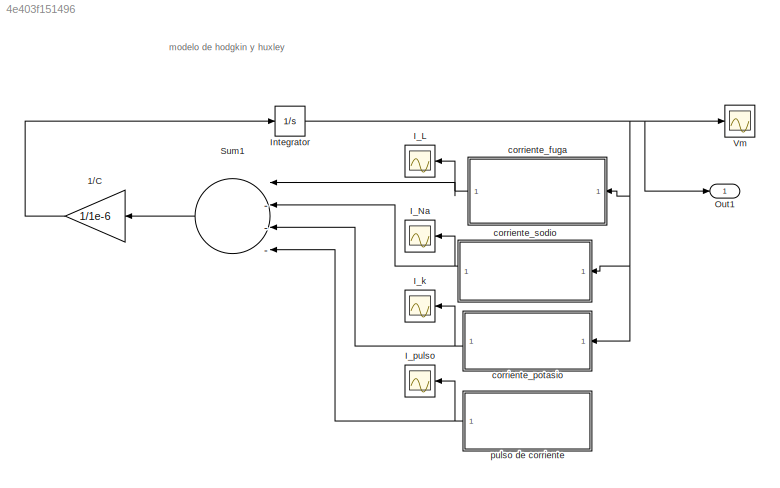
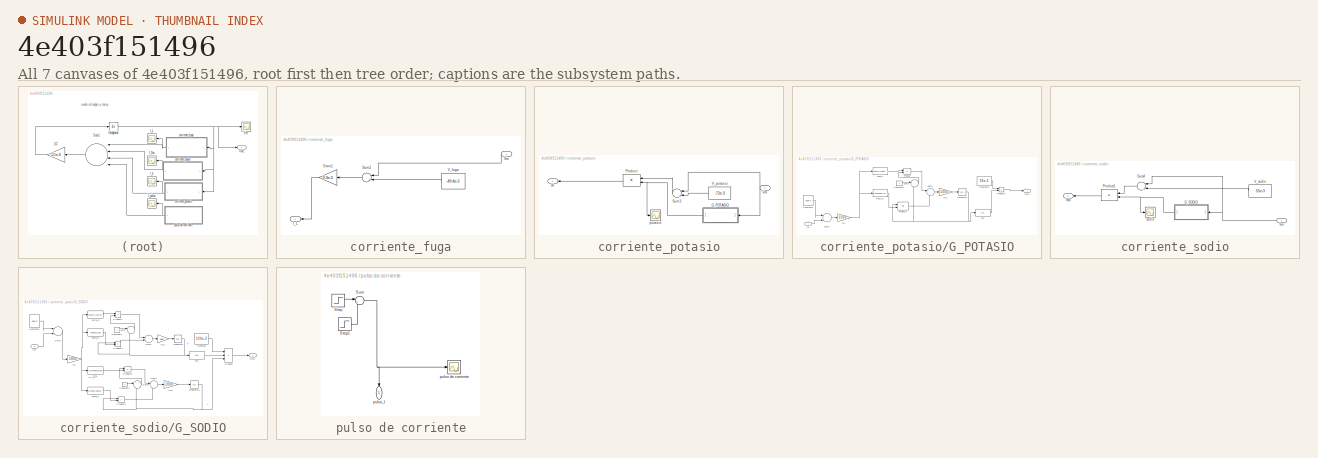
[diagram: thumbnail index - all 7 canvases of the model, root first then tree order]
MODEL slx_4e403f151496
KIND model
CONFIG AbsTol = auto
CONFIG EnableMultiTasking = on
CONFIG FixedStep = 30e-6
CONFIG MaxStep = auto
CONFIG MinStep = auto
CONFIG RelTol = 1e-3
CONFIG SampleTimeConstraint = Unconstrained
CONFIG Solver = FixedStepAuto
CONFIG SolverName = FixedStepAuto
CONFIG StartTime = 0.0
CONFIG StopTime = 30e-3
BLOCK [Gain] 1//C
  Gain = 1/1e-6
BLOCK [Scope] I_L
  Floating = off
  NumInputPorts = 1
  Ports = [1]
  ScopeSpecificationString = C++SS(StrPVP('Location','[564, 159, 896, 337]'),StrPVP('Open','off'),StrPVP('ZoomMode','xonly'),MxPVP('AxesTitles',53,'struct(''axes1'',''%<SignalLabel>'')'),StrPVP('ShowLegends','off'),StrPVP('TimeRange','0.08            '),StrPVP('YMin','-0.048825'),StrPVP('YMax','-0.048375'),StrPVP('SaveName','ScopeData6'),StrPVP('DataFormat','StructureWithTime'),StrPVP('BlockParamSampleTime','0'),StrPVP('Limit...<+81ch>
BLOCK [Scope] I_Na
  Floating = off
  NumInputPorts = 1
  Ports = [1]
  ScopeSpecificationString = C++SS(StrPVP('Location','[662, 296, 1007, 521]'),StrPVP('Open','off'),StrPVP('ZoomMode','xonly'),MxPVP('AxesTitles',53,'struct(''axes1'',''%<SignalLabel>'')'),StrPVP('ShowLegends','off'),StrPVP('TimeRange','0.08            '),StrPVP('YMin','-0.048825'),StrPVP('YMax','-0.048375'),StrPVP('SaveName','ScopeData4'),StrPVP('DataFormat','StructureWithTime'),StrPVP('BlockParamSampleTime','0'),StrPVP('Limi...<+82ch>
BLOCK [Scope] I_k
  Floating = off
  NumInputPorts = 1
  Ports = [1]
  ScopeSpecificationString = C++SS(StrPVP('Location','[596, 85, 966, 368]'),StrPVP('Open','off'),StrPVP('ZoomMode','xonly'),MxPVP('AxesTitles',53,'struct(''axes1'',''%<SignalLabel>'')'),StrPVP('ShowLegends','off'),StrPVP('TimeRange','0.08            '),StrPVP('YMin','-0.048825'),StrPVP('YMax','-0.048375'),StrPVP('SaveName','ScopeData3'),StrPVP('DataFormat','StructureWithTime'),StrPVP('BlockParamSampleTime','0'),StrPVP('LimitD...<+80ch>
BLOCK [Scope] I_pulso
  Floating = off
  NumInputPorts = 1
  Ports = [1]
  ScopeSpecificationString = C++SS(StrPVP('Location','[500, 305, 1104, 703]'),StrPVP('Open','off'),StrPVP('ZoomMode','xonly'),MxPVP('AxesTitles',53,'struct(''axes1'',''%<SignalLabel>'')'),MxPVP('ScopeGraphics',56,'struct(''FigureColor'',''[0.5 0.5 0.5]'',''AxesColor'',''[0 0 0]'',''AxesTickColor'',''[1 1 1]'',''LineColors'',''[1 1 0;1 0 1;0 1 1;1 0 0;0 1 0;0 0 1]'',''LineStyles'',''-|-|-|-|-|-'',''LineWidths'',''[0.5 0.5 0.5 ...<+392ch>
BLOCK [Integrator] Integrator
  InitialCondition = -60e-3
  Ports = [1, 1]
BLOCK [Outport] Out1
  IconDisplay = Port number
BLOCK [Sum] Sum1
  InputSameDT = off
  Inputs = |---+
  OutDataTypeStr = Inherit: Inherit via internal rule
  Ports = [4, 1]
BLOCK [Scope] Vm
  Floating = off
  NumInputPorts = 1
  Ports = [1]
  ScopeSpecificationString = Simulink.scopes.TimeScopeBlockCfg('CurrentConfiguration', extmgr.ConfigurationSet(extmgr.Configuration('Core','General UI',true),extmgr.Configuration('Core','Source UI',true),extmgr.Configuration('Sources','WiredSimulink',true,'DataLoggingVariableName','ScopeData1','DataLoggingSaveFormat','StructureWithTime','DataLoggingLimitDataPoints',true,'DataLoggingDecimation','1','DataLoggingDecimateData',tr...<+2113ch>
BLOCK [SubSystem] corriente_fuga
  Ports = [1, 1]
  RequestExecContextInheritance = off
BLOCK [Gain] corriente_fuga/Gain1
  Gain = 0.3e-3
BLOCK [Outport] corriente_fuga/I_L
  IconDisplay = Port number
BLOCK [Sum] corriente_fuga/Sum2
  InputSameDT = off
  Inputs = |+-
  OutDataTypeStr = Inherit: Inherit via internal rule
  Ports = [2, 1]
BLOCK [Constant] corriente_fuga/V_fuga
  Value = -49.4e-3
BLOCK [Inport] corriente_fuga/Vm
  IconDisplay = Port number
BLOCK [SubSystem] corriente_potasio
  Ports = [1, 1]
  RequestExecContextInheritance = off
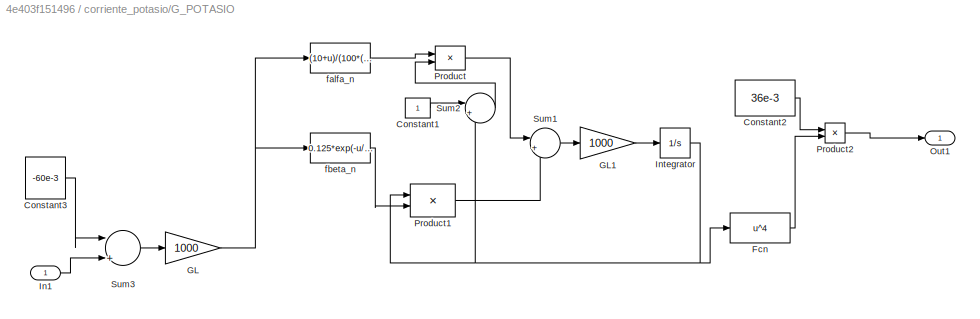
BLOCK [SubSystem] corriente_potasio/G_POTASIO
  Ports = [1, 1]
  RequestExecContextInheritance = off
BLOCK [Constant] corriente_potasio/G_POTASIO/Constant1
BLOCK [Constant] corriente_potasio/G_POTASIO/Constant2
  Value = 36e-3
  VectorParams1D = off
BLOCK [Constant] corriente_potasio/G_POTASIO/Constant3
  Value = -60e-3
BLOCK [Fcn] corriente_potasio/G_POTASIO/Fcn
  Expr = u^4
BLOCK [Gain] corriente_potasio/G_POTASIO/GL
  Gain = 1000
BLOCK [Gain] corriente_potasio/G_POTASIO/GL1
  Gain = 1000
BLOCK [Inport] corriente_potasio/G_POTASIO/In1
  IconDisplay = Port number
BLOCK [Integrator] corriente_potasio/G_POTASIO/Integrator
  InitialCondition = 0.317
  Ports = [1, 1]
BLOCK [Outport] corriente_potasio/G_POTASIO/Out1
  IconDisplay = Port number
BLOCK [Product] corriente_potasio/G_POTASIO/Product
  InputSameDT = off
  Ports = [2, 1]
  RndMeth = Floor
BLOCK [Product] corriente_potasio/G_POTASIO/Product1
  InputSameDT = off
  Ports = [2, 1]
  RndMeth = Floor
BLOCK [Product] corriente_potasio/G_POTASIO/Product2
  InputSameDT = off
  Ports = [2, 1]
  RndMeth = Floor
BLOCK [Sum] corriente_potasio/G_POTASIO/Sum1
  IconShape = round
  InputSameDT = off
  Inputs = |+-
  OutDataTypeStr = Inherit: Inherit via internal rule
  Ports = [2, 1]
BLOCK [Sum] corriente_potasio/G_POTASIO/Sum2
  IconShape = round
  InputSameDT = off
  Inputs = |+-
  OutDataTypeStr = Inherit: Inherit via internal rule
  Ports = [2, 1]
BLOCK [Sum] corriente_potasio/G_POTASIO/Sum3
  InputSameDT = off
  Inputs = |+-
  OutDataTypeStr = Inherit: Inherit via internal rule
  Ports = [2, 1]
BLOCK [Fcn] corriente_potasio/G_POTASIO/falfa_n
  Expr = (10+u)/(100*(exp((10+u)/10)-1))
BLOCK [Fcn] corriente_potasio/G_POTASIO/fbeta_n
  Expr = 0.125*exp(-u/80)
BLOCK [Outport] corriente_potasio/IK
  IconDisplay = Port number
BLOCK [Product] corriente_potasio/Product
  InputSameDT = off
  Ports = [2, 1]
  RndMeth = Floor
BLOCK [Sum] corriente_potasio/Sum3
  InputSameDT = off
  Inputs = |+-
  OutDataTypeStr = Inherit: Inherit via internal rule
  Ports = [2, 1]
BLOCK [Constant] corriente_potasio/V_potasio
  Value = -72e-3
BLOCK [Inport] corriente_potasio/Vm
  IconDisplay = Port number
BLOCK [Scope] corriente_potasio/potasio
  Floating = off
  NumInputPorts = 1
  Ports = [1]
  ScopeSpecificationString = C++SS(StrPVP('Location','[719, 370, 997, 604]'),StrPVP('Open','off'),StrPVP('ZoomMode','xonly'),MxPVP('AxesTitles',53,'struct(''axes1'',''%<SignalLabel>'')'),StrPVP('ShowLegends','off'),StrPVP('TimeRange','0.08            '),StrPVP('YMin','-0.048825'),StrPVP('YMax','-0.048375'),StrPVP('SaveName','ScopeData7'),StrPVP('DataFormat','StructureWithTime'),StrPVP('BlockParamSampleTime','0'),StrPVP('Limit...<+81ch>
BLOCK [SubSystem] corriente_sodio
  Ports = [1, 1]
  RequestExecContextInheritance = off
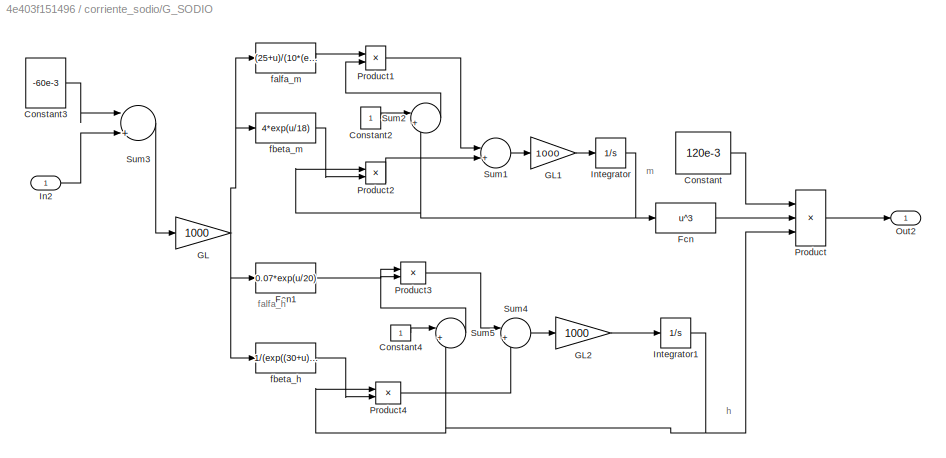
BLOCK [SubSystem] corriente_sodio/G_SODIO
  Ports = [1, 1]
  RequestExecContextInheritance = off
BLOCK [Constant] corriente_sodio/G_SODIO/Constant
  Value = 120e-3
BLOCK [Constant] corriente_sodio/G_SODIO/Constant2
BLOCK [Constant] corriente_sodio/G_SODIO/Constant3
  Value = -60e-3
BLOCK [Constant] corriente_sodio/G_SODIO/Constant4
BLOCK [Fcn] corriente_sodio/G_SODIO/Fcn
  Expr = u^3
BLOCK [Fcn] corriente_sodio/G_SODIO/Fcn1
  Expr = 0.07*exp(u/20)
BLOCK [Gain] corriente_sodio/G_SODIO/GL
  Gain = 1000
BLOCK [Gain] corriente_sodio/G_SODIO/GL1
  Gain = 1000
BLOCK [Gain] corriente_sodio/G_SODIO/GL2
  Gain = 1000
BLOCK [Inport] corriente_sodio/G_SODIO/In2
  IconDisplay = Port number
BLOCK [Integrator] corriente_sodio/G_SODIO/Integrator
  InitialCondition = 0.053
  Ports = [1, 1]
BLOCK [Integrator] corriente_sodio/G_SODIO/Integrator1
  InitialCondition = 0.596
  Ports = [1, 1]
BLOCK [Outport] corriente_sodio/G_SODIO/Out2
  IconDisplay = Port number
BLOCK [Product] corriente_sodio/G_SODIO/Product
  InputSameDT = off
  Inputs = 3
  OutDataTypeStr = Inherit: Inherit via internal rule
  Ports = [3, 1]
  SaturateOnIntegerOverflow = off
BLOCK [Product] corriente_sodio/G_SODIO/Product1
  InputSameDT = off
  Ports = [2, 1]
  RndMeth = Floor
BLOCK [Product] corriente_sodio/G_SODIO/Product2
  InputSameDT = off
  Ports = [2, 1]
  RndMeth = Floor
BLOCK [Product] corriente_sodio/G_SODIO/Product3
  InputSameDT = off
  Ports = [2, 1]
  RndMeth = Floor
BLOCK [Product] corriente_sodio/G_SODIO/Product4
  InputSameDT = off
  Ports = [2, 1]
  RndMeth = Floor
BLOCK [Sum] corriente_sodio/G_SODIO/Sum1
  IconShape = round
  InputSameDT = off
  Inputs = |+-
  OutDataTypeStr = Inherit: Inherit via internal rule
  Ports = [2, 1]
BLOCK [Sum] corriente_sodio/G_SODIO/Sum2
  IconShape = round
  InputSameDT = off
  Inputs = |+-
  OutDataTypeStr = Inherit: Inherit via internal rule
  Ports = [2, 1]
BLOCK [Sum] corriente_sodio/G_SODIO/Sum3
  InputSameDT = off
  Inputs = |+-
  OutDataTypeStr = Inherit: Inherit via internal rule
  Ports = [2, 1]
BLOCK [Sum] corriente_sodio/G_SODIO/Sum4
  IconShape = round
  InputSameDT = off
  Inputs = |+-
  OutDataTypeStr = Inherit: Inherit via internal rule
  Ports = [2, 1]
BLOCK [Sum] corriente_sodio/G_SODIO/Sum5
  IconShape = round
  InputSameDT = off
  Inputs = |+-
  OutDataTypeStr = Inherit: Inherit via internal rule
  Ports = [2, 1]
BLOCK [Fcn] corriente_sodio/G_SODIO/falfa_m
  Expr = (25+u)/(10*(exp((25+u)/10)-1))
BLOCK [Fcn] corriente_sodio/G_SODIO/fbeta_h
  Expr = 1/(exp((30+u)/10)+1)
BLOCK [Fcn] corriente_sodio/G_SODIO/fbeta_m
  Expr = 4*exp(u/18)
BLOCK [Outport] corriente_sodio/INa
  IconDisplay = Port number
BLOCK [Product] corriente_sodio/Product1
  InputSameDT = off
  Ports = [2, 1]
  RndMeth = Floor
BLOCK [Sum] corriente_sodio/Sum4
  InputSameDT = off
  Inputs = |+-
  OutDataTypeStr = Inherit: Inherit via internal rule
  Ports = [2, 1]
BLOCK [Constant] corriente_sodio/V_sodio
  Value = 55e-3
BLOCK [Inport] corriente_sodio/Vm
  IconDisplay = Port number
BLOCK [Scope] corriente_sodio/sodio
  Floating = off
  NumInputPorts = 1
  Ports = [1]
  ScopeSpecificationString = C++SS(StrPVP('Location','[719, 44, 998, 300]'),StrPVP('Open','off'),StrPVP('ZoomMode','xonly'),MxPVP('AxesTitles',53,'struct(''axes1'',''%<SignalLabel>'')'),StrPVP('ShowLegends','off'),StrPVP('TimeRange','0.08            '),StrPVP('YMin','-0.048825'),StrPVP('YMax','-0.048375'),StrPVP('DataFormat','StructureWithTime'),StrPVP('BlockParamSampleTime','0'),StrPVP('LimitDataPoints','on'),StrPVP('Decimat...<+48ch>
BLOCK [SubSystem] pulso de corriente
  Ports = [0, 1]
  RequestExecContextInheritance = off
BLOCK [Step] pulso de corriente/Step
  After = Mag_pulso_corriente
  SampleTime = 0
  Time = 0
  VectorParams1D = off
BLOCK [Step] pulso de corriente/Step1
  After = Mag_pulso_corriente
  SampleTime = 0
  Time = 2e-3
  VectorParams1D = off
BLOCK [Sum] pulso de corriente/Sum
  IconShape = round
  InputSameDT = off
  Inputs = |+-
  OutDataTypeStr = Inherit: Inherit via internal rule
  Ports = [2, 1]
BLOCK [Scope] pulso de corriente/pulso de corriente
  Floating = off
  NumInputPorts = 1
  Ports = [1]
  ScopeSpecificationString = C++SS(StrPVP('Location','[391, 207, 995, 605]'),StrPVP('Open','off'),StrPVP('ZoomMode','yonly'),MxPVP('AxesTitles',53,'struct(''axes1'',''%<SignalLabel>'')'),MxPVP('ScopeGraphics',56,'struct(''FigureColor'',''[0.5 0.5 0.5]'',''AxesColor'',''[0 0 0]'',''AxesTickColor'',''[1 1 1]'',''LineColors'',''[1 1 0;1 0 1;0 1 1;1 0 0;0 1 0;0 0 1]'',''LineStyles'',''-|-|-|-|-|-'',''LineWidths'',''[0.5 0.5 0.5 0...<+337ch>
BLOCK [Outport] pulso de corriente/pulso_I
  IconDisplay = Port number
ANNOTATION (root): modelo de hodgkin y huxley
ANNOTATION corriente_sodio/G_SODIO: falfa_h
ANNOTATION corriente_sodio/G_SODIO: h
ANNOTATION corriente_sodio/G_SODIO: m
LINE 1//C:1 -> Integrator:1
NET Integrator:1 -> Out1:1, Vm:1, corriente_fuga:1, corriente_potasio:1, corriente_sodio:1
LINE Sum1:1 -> 1//C:1
LINE corriente_fuga/Gain1:1 -> corriente_fuga/I_L:1
LINE corriente_fuga/Sum2:1 -> corriente_fuga/Gain1:1
LINE corriente_fuga/V_fuga:1 -> corriente_fuga/Sum2:2
LINE corriente_fuga/Vm:1 -> corriente_fuga/Sum2:1
NET corriente_fuga:1 -> I_L:1, Sum1:1
LINE corriente_potasio/G_POTASIO/Constant1:1 -> corriente_potasio/G_POTASIO/Sum2:1
LINE corriente_potasio/G_POTASIO/Constant2:1 -> corriente_potasio/G_POTASIO/Product2:1
LINE corriente_potasio/G_POTASIO/Constant3:1 -> corriente_potasio/G_POTASIO/Sum3:1
LINE corriente_potasio/G_POTASIO/Fcn:1 -> corriente_potasio/G_POTASIO/Product2:2
LINE corriente_potasio/G_POTASIO/GL1:1 -> corriente_potasio/G_POTASIO/Integrator:1
NET corriente_potasio/G_POTASIO/GL:1 -> corriente_potasio/G_POTASIO/falfa_n:1, corriente_potasio/G_POTASIO/fbeta_n:1
LINE corriente_potasio/G_POTASIO/In1:1 -> corriente_potasio/G_POTASIO/Sum3:2
NET corriente_potasio/G_POTASIO/Integrator:1 -> corriente_potasio/G_POTASIO/Fcn:1, corriente_potasio/G_POTASIO/Product1:1, corriente_potasio/G_POTASIO/Sum2:2
LINE corriente_potasio/G_POTASIO/Product1:1 -> corriente_potasio/G_POTASIO/Sum1:2
LINE corriente_potasio/G_POTASIO/Product2:1 -> corriente_potasio/G_POTASIO/Out1:1
LINE corriente_potasio/G_POTASIO/Product:1 -> corriente_potasio/G_POTASIO/Sum1:1
LINE corriente_potasio/G_POTASIO/Sum1:1 -> corriente_potasio/G_POTASIO/GL1:1
LINE corriente_potasio/G_POTASIO/Sum2:1 -> corriente_potasio/G_POTASIO/Product:2
LINE corriente_potasio/G_POTASIO/Sum3:1 -> corriente_potasio/G_POTASIO/GL:1
LINE corriente_potasio/G_POTASIO/falfa_n:1 -> corriente_potasio/G_POTASIO/Product:1
LINE corriente_potasio/G_POTASIO/fbeta_n:1 -> corriente_potasio/G_POTASIO/Product1:2
NET corriente_potasio/G_POTASIO:1 -> corriente_potasio/Product:2, corriente_potasio/potasio:1
LINE corriente_potasio/Product:1 -> corriente_potasio/IK:1
LINE corriente_potasio/Sum3:1 -> corriente_potasio/Product:1
LINE corriente_potasio/V_potasio:1 -> corriente_potasio/Sum3:2
NET corriente_potasio/Vm:1 -> corriente_potasio/G_POTASIO:1, corriente_potasio/Sum3:1
NET corriente_potasio:1 -> I_k:1, Sum1:3
LINE corriente_sodio/G_SODIO/Constant2:1 -> corriente_sodio/G_SODIO/Sum2:1
LINE corriente_sodio/G_SODIO/Constant3:1 -> corriente_sodio/G_SODIO/Sum3:1
LINE corriente_sodio/G_SODIO/Constant4:1 -> corriente_sodio/G_SODIO/Sum5:1
LINE corriente_sodio/G_SODIO/Constant:1 -> corriente_sodio/G_SODIO/Product:1
LINE corriente_sodio/G_SODIO/Fcn1:1 -> corriente_sodio/G_SODIO/Product3:1
LINE corriente_sodio/G_SODIO/Fcn:1 -> corriente_sodio/G_SODIO/Product:2
LINE corriente_sodio/G_SODIO/GL1:1 -> corriente_sodio/G_SODIO/Integrator:1
LINE corriente_sodio/G_SODIO/GL2:1 -> corriente_sodio/G_SODIO/Integrator1:1
NET corriente_sodio/G_SODIO/GL:1 -> corriente_sodio/G_SODIO/Fcn1:1, corriente_sodio/G_SODIO/falfa_m:1, corriente_sodio/G_SODIO/fbeta_h:1, corriente_sodio/G_SODIO/fbeta_m:1
LINE corriente_sodio/G_SODIO/In2:1 -> corriente_sodio/G_SODIO/Sum3:2
NET corriente_sodio/G_SODIO/Integrator1:1 -> corriente_sodio/G_SODIO/Product4:1, corriente_sodio/G_SODIO/Product:3, corriente_sodio/G_SODIO/Sum5:2
NET corriente_sodio/G_SODIO/Integrator:1 -> corriente_sodio/G_SODIO/Fcn:1, corriente_sodio/G_SODIO/Product2:1, corriente_sodio/G_SODIO/Sum2:2
LINE corriente_sodio/G_SODIO/Product1:1 -> corriente_sodio/G_SODIO/Sum1:1
LINE corriente_sodio/G_SODIO/Product2:1 -> corriente_sodio/G_SODIO/Sum1:2
LINE corriente_sodio/G_SODIO/Product3:1 -> corriente_sodio/G_SODIO/Sum4:1
LINE corriente_sodio/G_SODIO/Product4:1 -> corriente_sodio/G_SODIO/Sum4:2
LINE corriente_sodio/G_SODIO/Product:1 -> corriente_sodio/G_SODIO/Out2:1
LINE corriente_sodio/G_SODIO/Sum1:1 -> corriente_sodio/G_SODIO/GL1:1
LINE corriente_sodio/G_SODIO/Sum2:1 -> corriente_sodio/G_SODIO/Product1:2
LINE corriente_sodio/G_SODIO/Sum3:1 -> corriente_sodio/G_SODIO/GL:1
LINE corriente_sodio/G_SODIO/Sum4:1 -> corriente_sodio/G_SODIO/GL2:1
LINE corriente_sodio/G_SODIO/Sum5:1 -> corriente_sodio/G_SODIO/Product3:2
LINE corriente_sodio/G_SODIO/falfa_m:1 -> corriente_sodio/G_SODIO/Product1:1
LINE corriente_sodio/G_SODIO/fbeta_h:1 -> corriente_sodio/G_SODIO/Product4:2
LINE corriente_sodio/G_SODIO/fbeta_m:1 -> corriente_sodio/G_SODIO/Product2:2
NET corriente_sodio/G_SODIO:1 -> corriente_sodio/Product1:2, corriente_sodio/sodio:1
LINE corriente_sodio/Product1:1 -> corriente_sodio/INa:1
LINE corriente_sodio/Sum4:1 -> corriente_sodio/Product1:1
LINE corriente_sodio/V_sodio:1 -> corriente_sodio/Sum4:2
NET corriente_sodio/Vm:1 -> corriente_sodio/G_SODIO:1, corriente_sodio/Sum4:1
NET corriente_sodio:1 -> I_Na:1, Sum1:2
LINE pulso de corriente/Step1:1 -> pulso de corriente/Sum:2
LINE pulso de corriente/Step:1 -> pulso de corriente/Sum:1
NET pulso de corriente/Sum:1 -> pulso de corriente/pulso de corriente:1, pulso de corriente/pulso_I:1
NET pulso de corriente:1 -> I_pulso:1, Sum1:4
note: NET lines group one-source signal fan-out (src -> all destinations, sorted); 1:1 wires keep LINE
